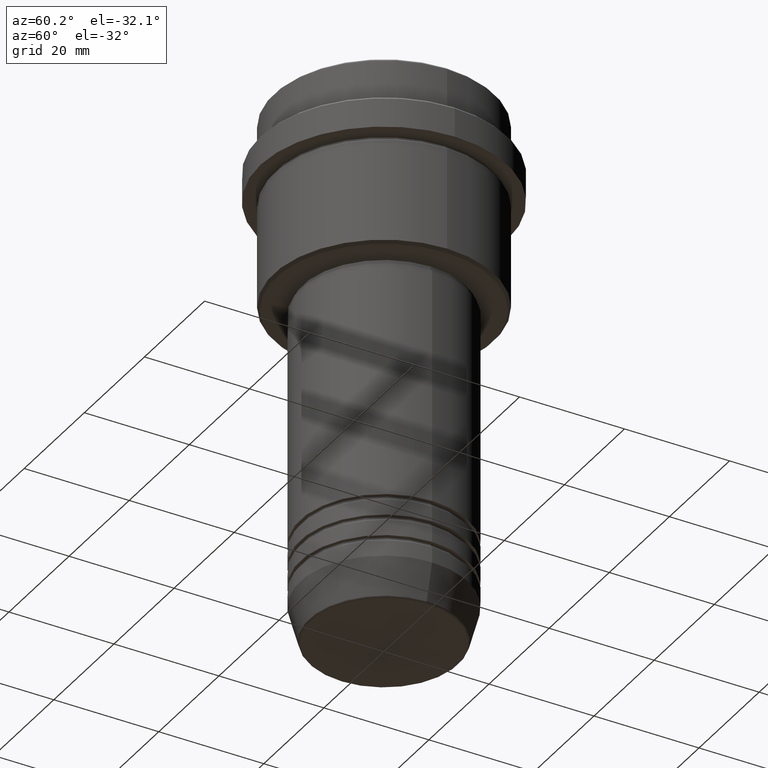
[diagram: clean part render]
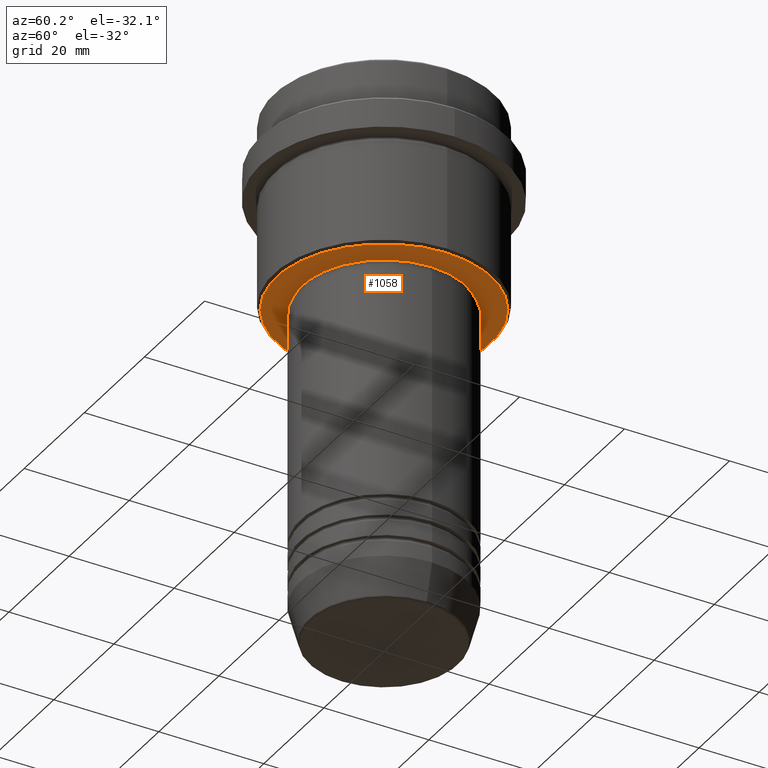
[diagram: same view with one face highlighted and labeled with its STEP entity id]
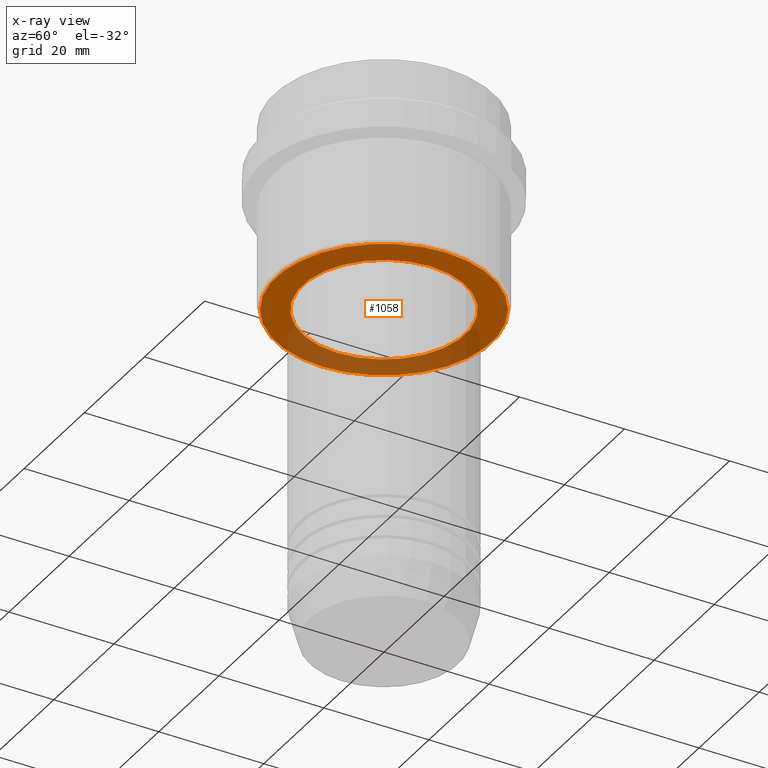
[diagram: x-ray of the same camera — body ghosted, the highlighted face saturated]
A machine part, auxiliary view. The second image highlights one B-rep face of the part: STEP entity #1058.
The next image is the same camera in x-ray: the body ghosted, the highlighted face saturated — about 34% of this face is hidden behind the body in this view.
In plain terms, the highlighted planar face has unit normal (0, 0, -1).
Its self-contained STEP definition (entity closure, byte-faithful):
#4 = VERTEX_POINT ( 'NONE', #1416 ) ;
#11 = CARTESIAN_POINT ( 'NONE',  ( 0.000000000000000000, 0.000000000000000000, -36.00000000000000711 ) ) ;
#13 = VERTEX_POINT ( 'NONE', #114 ) ;
#38 = DIRECTION ( 'NONE',  ( 0.000000000000000000, 0.000000000000000000, -1.000000000000000000 ) ) ;
#100 = CIRCLE ( 'NONE', #1265, 20.50000000000001776 ) ;
#114 = CARTESIAN_POINT ( 'NONE',  ( -20.50000000000001776, 2.541142108230759057E-15, -36.00000000000000711 ) ) ;
#118 = DIRECTION ( 'NONE',  ( -1.000000000000000000, 0.000000000000000000, 0.000000000000000000 ) ) ;
#154 = DIRECTION ( 'NONE',  ( -0.000000000000000000, -0.000000000000000000, 1.000000000000000000 ) ) ;
#233 = CARTESIAN_POINT ( 'NONE',  ( 15.49999999999999645, 0.000000000000000000, -36.00000000000000000 ) ) ;
#303 = DIRECTION ( 'NONE',  ( 0.000000000000000000, 0.000000000000000000, -1.000000000000000000 ) ) ;
#326 = EDGE_CURVE ( 'NONE', #1409, #13, #100, .T. ) ;
#328 = VERTEX_POINT ( 'NONE', #233 ) ;
#342 = CARTESIAN_POINT ( 'NONE',  ( 20.50000000000001776, 0.000000000000000000, -36.00000000000000711 ) ) ;
#445 = ORIENTED_EDGE ( 'NONE', *, *, #569, .T. ) ;
#478 = DIRECTION ( 'NONE',  ( 1.000000000000000000, 0.000000000000000000, 0.000000000000000000 ) ) ;
#515 = CIRCLE ( 'NONE', #911, 15.49999999999999645 ) ;
#522 = EDGE_LOOP ( 'NONE', ( #834, #1296 ) ) ;
#569 = EDGE_CURVE ( 'NONE', #4, #328, #515, .T. ) ;
#613 = DIRECTION ( 'NONE',  ( -1.000000000000000000, 0.000000000000000000, -0.000000000000000000 ) ) ;
#615 = EDGE_CURVE ( 'NONE', #328, #4, #1315, .T. ) ;
#705 = DIRECTION ( 'NONE',  ( -0.000000000000000000, -0.000000000000000000, 1.000000000000000000 ) ) ;
#710 = FACE_OUTER_BOUND ( 'NONE', #522, .T. ) ;
#716 = CARTESIAN_POINT ( 'NONE',  ( 0.000000000000000000, 0.000000000000000000, -36.00000000000000000 ) ) ;
#725 = CARTESIAN_POINT ( 'NONE',  ( 0.000000000000000000, 0.000000000000000000, -36.00000000000000000 ) ) ;
#808 = CARTESIAN_POINT ( 'NONE',  ( 0.000000000000000000, 0.000000000000000000, -36.00000000000000711 ) ) ;
#834 = ORIENTED_EDGE ( 'NONE', *, *, #326, .T. ) ;
#845 = CIRCLE ( 'NONE', #1096, 20.50000000000001776 ) ;
#892 = AXIS2_PLACEMENT_3D ( 'NONE', #1386, #303, #613 ) ;
#911 = AXIS2_PLACEMENT_3D ( 'NONE', #716, #154, #478 ) ;
#926 = DIRECTION ( 'NONE',  ( -1.000000000000000000, 0.000000000000000000, 0.000000000000000000 ) ) ;
#1024 = DIRECTION ( 'NONE',  ( 0.000000000000000000, 0.000000000000000000, -1.000000000000000000 ) ) ;
#1035 = EDGE_CURVE ( 'NONE', #13, #1409, #845, .T. ) ;
#1045 = DIRECTION ( 'NONE',  ( 1.000000000000000000, 0.000000000000000000, 0.000000000000000000 ) ) ;
#1058 = ADVANCED_FACE ( 'NONE', ( #710, #1149 ), #1390, .T. ) ;
#1092 = AXIS2_PLACEMENT_3D ( 'NONE', #725, #705, #1045 ) ;
#1096 = AXIS2_PLACEMENT_3D ( 'NONE', #808, #38, #926 ) ;
#1149 = FACE_BOUND ( 'NONE', #1401, .T. ) ;
#1222 = ORIENTED_EDGE ( 'NONE', *, *, #615, .T. ) ;
#1265 = AXIS2_PLACEMENT_3D ( 'NONE', #11, #1024, #118 ) ;
#1296 = ORIENTED_EDGE ( 'NONE', *, *, #1035, .T. ) ;
#1315 = CIRCLE ( 'NONE', #1092, 15.49999999999999645 ) ;
#1386 = CARTESIAN_POINT ( 'NONE',  ( 0.000000000000000000, 21.00000000000000000, -36.00000000000000711 ) ) ;
#1390 = PLANE ( 'NONE',  #892 ) ;
#1401 = EDGE_LOOP ( 'NONE', ( #1222, #445 ) ) ;
#1409 = VERTEX_POINT ( 'NONE', #342 ) ;
#1416 = CARTESIAN_POINT ( 'NONE',  ( -15.49999999999999645, 1.898202538678397163E-15, -36.00000000000000000 ) ) ;